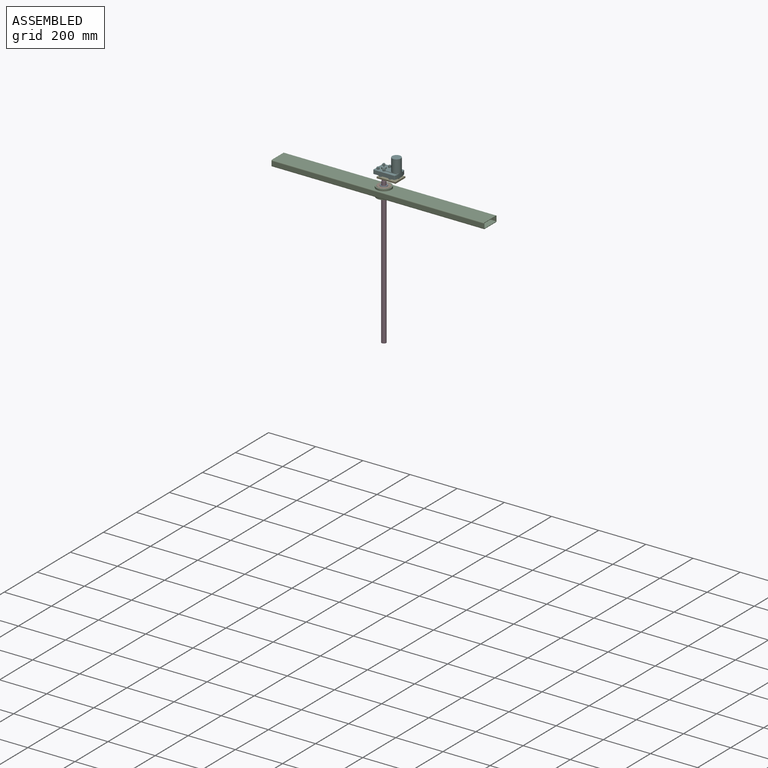
[diagram: assembled view]
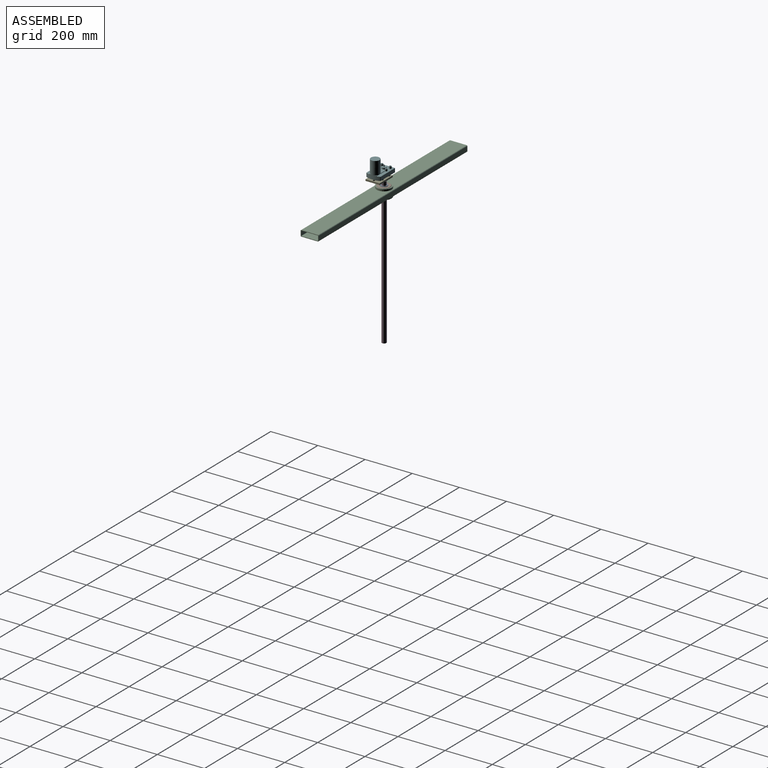
[diagram: assembled view, second angle]
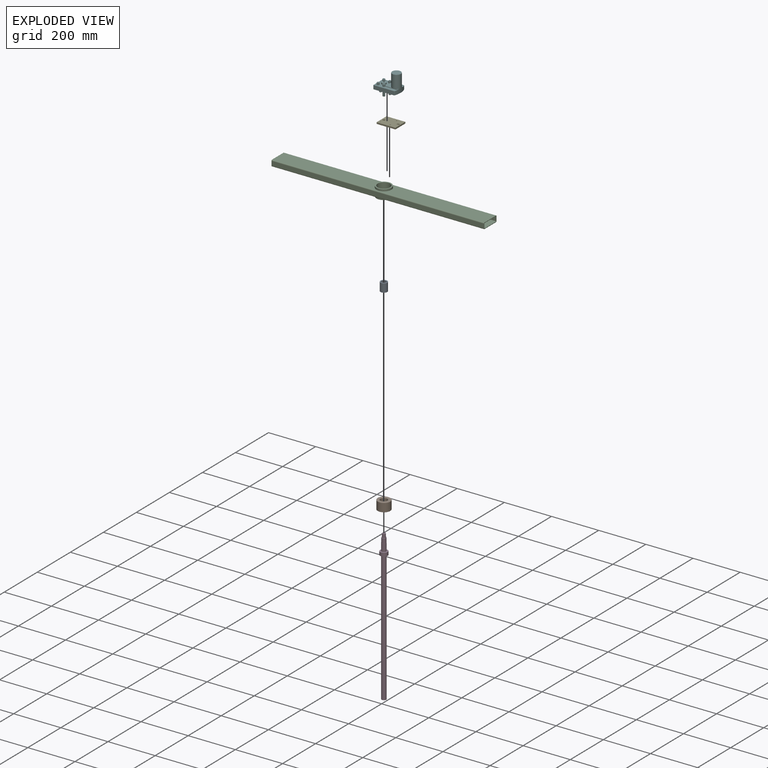
[diagram: exploded view]
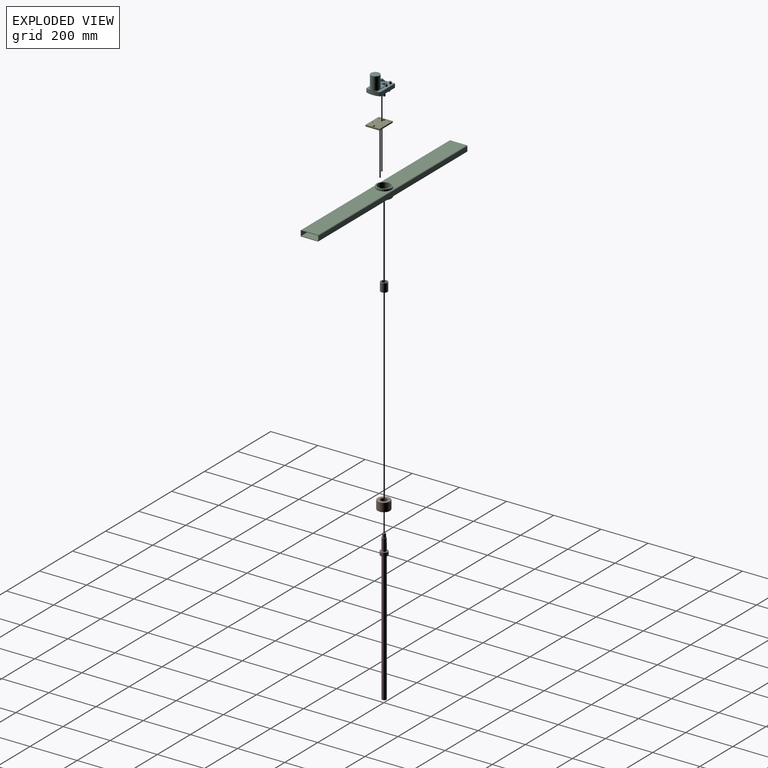
[diagram: exploded view, second angle]
ASSEMBLY  parts=6 mates=5
PART A: 8 faces, bbox 31.3x31.3x36.5 mm
  f0: cylinder r=9.53mm len=35.5mm, axis (0,0,-1), area 2124.6mm2, adj f4,f6
  f1: cylinder r=14.45mm len=35.5mm, axis (0,0,-1), area 3223.1mm2, adj f5,f7
  f2: plane 27.9x27.9mm, normal (0,0,1), area 295.6mm2, adj f6,f7
  f3: plane 27.9x27.9mm, normal (0,0,-1), area 295.6mm2, adj f4,f5
  f4: torus R=10.02mm, axis (0,0,1), area 47.9mm2, adj f0,f3
  f5: torus R=13.95mm, axis (0,0,1), area 70.4mm2, adj f1,f3
  f6: torus R=10.02mm, axis (0,0,1), area 47.9mm2, adj f0,f2
  f7: torus R=13.95mm, axis (0,0,1), area 70.4mm2, adj f1,f2
PART B: 8 faces, bbox 57.4x57.4x37 mm
  f0: cylinder r=14.45mm len=32.6mm, axis (0,0,-1), area 2959.8mm2, adj f4,f5
  f1: cylinder r=26.5mm len=53mm, axis (0,0,-1), area 5827.7mm2, adj f6,f7
  f2: plane 51x51mm, normal (0,0,1), area 1171.9mm2, adj f5,f7
  f3: plane 51x51mm, normal (0,0,-1), area 1171.9mm2, adj f4,f6
  f4: torus R=16.65mm, axis (0,0,1), area 331.1mm2, adj f0,f3
  f5: torus R=16.65mm, axis (0,0,1), area 331.1mm2, adj f0,f2
  f6: torus R=25.5mm, axis (0,0,1), area 258mm2, adj f1,f3
  f7: torus R=25.5mm, axis (0,0,1), area 258mm2, adj f1,f2
PART C: 26 faces, bbox 901x76.2x41.4 mm
  f0: plane 901x69.2mm, normal (0,0,-1), area 59182.3mm2, adj f1,f15,f16,f17,f24
  f1: cylinder r=3.5mm len=901mm, axis (-1,0,0), area 4953.5mm2, adj f0,f2,f16,f17
  f2: plane 901x18.4mm, normal (0,1,0), area 16578.4mm2, adj f1,f3,f16,f17
  f3: cylinder r=3.5mm len=901mm, axis (-1,0,0), area 4953.5mm2, adj f2,f4,f16,f17
  f4: plane 901x69.2mm, normal (0,0,1), area 59182.3mm2, adj f3,f5,f16,f17,f20
  f5: cylinder r=3.5mm len=901mm, axis (-1,0,0), area 4953.5mm2, adj f4,f6,f16,f17
  f6: plane 901x18.4mm, normal (0,-1,0), area 16578.4mm2, adj f5,f15,f16,f17
  f7: cylinder r=1.12mm len=901mm, axis (-1,0,0), area 1585.1mm2, adj f8,f14,f16,f17
  f8: plane 901x69.2mm, normal (0,0,-1), area 59182.3mm2, adj f7,f9,f16,f17,f18
  f9: cylinder r=1.12mm len=901mm, axis (-1,0,0), area 1585.1mm2, adj f8,f10,f16,f17
  f10: plane 901x18.4mm, normal (0,-1,0), area 16578.4mm2, adj f9,f11,f16,f17
  f11: cylinder r=1.12mm len=901mm, axis (-1,0,0), area 1585.1mm2, adj f10,f12,f16,f17
  f12: plane 901x69.2mm, normal (0,0,1), area 59182.3mm2, adj f11,f13,f16,f17,f18
  f13: cylinder r=1.12mm len=901mm, axis (-1,0,0), area 1585.1mm2, adj f12,f14,f16,f17
  f14: plane 901x18.4mm, normal (0,1,0), area 16578.4mm2, adj f7,f13,f16,f17
  f15: cylinder r=3.5mm len=901mm, axis (-1,0,0), area 4953.5mm2, adj f0,f6,f16,f17
  f16: plane 76.2x25.4mm, normal (1,0,0), area 451.5mm2, adj f0,f1,f2,f3,f4,f5,f6,f7
  f17: plane 76.2x25.4mm, normal (-1,0,0), area 451.5mm2, adj f0,f1,f2,f3,f4,f5,f6,f7
  f18: cylinder r=31.75mm len=63.5mm, axis (0,0,-1), area 4117.5mm2, adj f8,f12
  f19: cylinder r=26.5mm len=53mm, axis (0,0,-1), area 5561.2mm2, adj f21,f22
  f20: cylinder r=31.75mm len=63.5mm, axis (0,0,-1), area 1595.9mm2, adj f4,f21
  f21: plane 63.5x63.5mm, normal (0,0,1), area 960.7mm2, adj f19,f20
  f22: plane 53x53mm, normal (0,0,1), area 471.2mm2, adj f19,f23
  f23: cylinder r=23.5mm len=47mm, axis (0,0,1), area 1181.2mm2, adj f22,f25
  f24: cylinder r=31.75mm len=63.5mm, axis (0,0,1), area 1595.9mm2, adj f0,f25
  f25: plane 63.5x63.5mm, normal (0,0,-1), area 1432mm2, adj f23,f24
PART D: 11 faces, bbox 32x32x636 mm
  f0: cylinder r=9.53mm len=32mm, axis (0,0,-1), area 1915.1mm2, adj f1,f10
  f1: plane 32x32mm, normal (0,0,1), area 519.2mm2, adj f0,f2
  f2: cylinder r=16mm len=32mm, axis (0,0,-1), area 1508mm2, adj f1,f3
  f3: plane 32x32mm, normal (0,0,-1), area 519.2mm2, adj f2,f4
  f4: cylinder r=9.53mm len=553mm, axis (0,0,-1), area 33095.6mm2, adj f3,f5
  f5: plane 19.05x19.05mm, normal (0,0,-1), area 285mm2, adj f4
  f6: plane 14x14mm, normal (0,0,1), area 153.9mm2, adj f7
  f7: cylinder r=7mm len=16mm, axis (0,0,-1), area 703.7mm2, adj f6,f8
  f8: plane 18.4x18.4mm, normal (0,0,1), area 112mm2, adj f7,f9
  f9: cylinder r=9.2mm len=20mm, axis (0,0,-1), area 1156.1mm2, adj f8,f10
  f10: plane 19.05x19.05mm, normal (0,0,1), area 19.1mm2, adj f0,f9
PART E: 15 faces, bbox 80x60x6.4 mm
  f0: plane 80x60mm, normal (0,0,1), area 4604.7mm2, adj f1,f3,f4,f5,f6,f7,f8,f9
  f1: plane 80x6.35mm, normal (0,-1,0), area 508mm2, adj f0,f2,f4,f5
  f2: plane 80x60mm, normal (0,0,-1), area 4604.7mm2, adj f1,f3,f4,f5,f6,f7,f8,f9
  f3: plane 80x6.35mm, normal (0,1,0), area 508mm2, adj f0,f2,f4,f5
  f4: plane 60x6.35mm, normal (1,0,0), area 381mm2, adj f0,f1,f2,f3
  f5: plane 60x6.35mm, normal (-1,0,0), area 381mm2, adj f0,f1,f2,f3
  f6: cylinder r=5mm len=10mm, axis (0,0,-1), area 199.5mm2, adj f0,f2
  f7: cylinder r=2mm len=6.35mm, axis (0,0,-1), area 79.8mm2, adj f0,f2
  f8: cylinder r=2mm len=6.35mm, axis (0,0,-1), area 79.8mm2, adj f0,f2
  f9: cylinder r=2mm len=6.35mm, axis (0,0,-1), area 79.8mm2, adj f0,f2
  f10: cylinder r=2mm len=6.35mm, axis (0,0,-1), area 79.8mm2, adj f0,f2
  f11: cylinder r=3.5mm len=7mm, axis (0,0,-1), area 69.8mm2, adj f0,f2,f12,f13
  f12: plane 6.35x4mm, normal (0,1,0), area 25.4mm2, adj f0,f2,f11,f14
  f13: plane 6.35x4mm, normal (0,-1,0), area 25.4mm2, adj f0,f2,f11,f14
  f14: cylinder r=3.5mm len=7mm, axis (0,0,-1), area 69.8mm2, adj f0,f2,f12,f13
PART F: 77 faces, bbox 60x96x104 mm
  f0: cylinder r=5mm len=10mm, axis (0,0,-1), area 204.2mm2, adj f2,f6,f13,f14,f75
  f1: cylinder r=2mm len=7mm, axis (0,0,-1), area 88mm2, adj f2,f76
  f2: plane 10x10mm, normal (0,0,1), area 66mm2, adj f0,f1
  f3: plane 4x4mm, normal (0,0,1), area 12.6mm2, adj f23
  f4: plane 4x4mm, normal (0,0,1), area 12.6mm2, adj f20
  f5: plane 4x4mm, normal (0,0,1), area 12.6mm2, adj f17
  f6: plane 63x40mm, normal (0,0,1), area 2258.7mm2, adj f0,f7,f8,f9,f10,f11,f12,f13
  f7: plane 30x2mm, normal (1,0,0), area 60mm2, adj f6,f18,f21,f75
  f8: plane 16x2mm, normal (1,0,0), area 32mm2, adj f6,f9,f18,f75
  f9: cylinder r=2mm len=2mm, axis (0,0,-1), area 6.3mm2, adj f6,f8,f10,f75
  f10: plane 36x2mm, normal (0,-1,0), area 72mm2, adj f6,f9,f11,f75
  f11: cylinder r=2mm len=2mm, axis (0,0,-1), area 6.3mm2, adj f6,f10,f12,f75
  f12: plane 16x2mm, normal (-1,0,0), area 32mm2, adj f6,f11,f24,f75
  f13: plane 30x2mm, normal (-1,0,0), area 60mm2, adj f0,f6,f24,f75
  f14: plane 5.5x2mm, normal (0,1,0), area 11mm2, adj f0,f6,f28,f75
  f15: plane 5.5x2mm, normal (0,1,0), area 11mm2, adj f6,f21,f28,f75
  f16: plane 10x10mm, normal (0,0,1), area 66mm2, adj f17,f18
  f17: cylinder r=2mm len=7mm, axis (0,0,-1), area 88mm2, adj f5,f16
  f18: cylinder r=5mm len=10mm, axis (0,0,-1), area 188.5mm2, adj f6,f7,f8,f16,f75
  f19: plane 10x10mm, normal (0,0,1), area 66mm2, adj f20,f21
  f20: cylinder r=2mm len=7mm, axis (0,0,-1), area 88mm2, adj f4,f19
  f21: cylinder r=5mm len=10mm, axis (0,0,-1), area 204.2mm2, adj f6,f7,f15,f19,f75
  f22: plane 10x10mm, normal (0,0,1), area 66mm2, adj f23,f24
  f23: cylinder r=2mm len=7mm, axis (0,0,-1), area 88mm2, adj f3,f22
  f24: cylinder r=5mm len=10mm, axis (0,0,-1), area 188.5mm2, adj f6,f12,f13,f22,f75
  f25: plane 9.5x9.5mm, normal (0,0,1), area 70.9mm2, adj f26
  f26: cylinder r=4.75mm len=24mm, axis (0,0,-1), area 716.3mm2, adj f25,f27
  f27: plane 19x19mm, normal (0,0,1), area 212.6mm2, adj f26,f28
  f28: cylinder r=9.5mm len=19mm, axis (0,0,-1), area 358.1mm2, adj f6,f14,f15,f27,f75
  f29: plane 18.57x2.5mm, normal (0,0,1), area 31.4mm2, adj f31,f59
  f30: plane 37x37mm, normal (0,0,-1), area 1075.2mm2, adj f31
  f31: cylinder r=18.5mm len=55mm, axis (0,0,1), area 6393.1mm2, adj f29,f30,f32,f33,f56,f73,f74
  f32: plane 13.61x1.3mm, normal (0,0,1), area 9.2mm2, adj f31,f71
  f33: plane 18.57x2.5mm, normal (0,0,1), area 31.4mm2, adj f31,f62
  f34: plane 3.2x3.2mm, normal (0,0,-1), area 8mm2, adj f35
  f35: cylinder r=1.6mm len=8.1mm, axis (0,0,1), area 81.4mm2, adj f34,f36
  f36: plane 9.5x9.5mm, normal (0,0,-1), area 62.8mm2, adj f35,f39
  f37: plane 19x19mm, normal (0,0,-1), area 212.6mm2, adj f38,f39
  f38: cylinder r=9.5mm len=19mm, axis (0,0,1), area 358.1mm2, adj f37,f64
  f39: cylinder r=4.75mm len=9.5mm, axis (0,0,1), area 3mm2, adj f36,f37
  f40: plane 4x4mm, normal (0,0,-1), area 12.6mm2, adj f42
  f41: plane 10x10mm, normal (0,0,-1), area 66mm2, adj f42,f43
  f42: cylinder r=2mm len=8.5mm, axis (0,0,1), area 106.8mm2, adj f40,f41
  f43: cylinder r=5mm len=10mm, axis (0,0,1), area 267mm2, adj f41,f64
  f44: plane 4x4mm, normal (0,0,-1), area 12.6mm2, adj f46
  f45: plane 10x10mm, normal (0,0,-1), area 66mm2, adj f46,f47
  f46: cylinder r=2mm len=8.5mm, axis (0,0,1), area 106.8mm2, adj f44,f45
  f47: cylinder r=5mm len=10mm, axis (0,0,1), area 267mm2, adj f45,f64
  f48: plane 4x4mm, normal (0,0,-1), area 12.6mm2, adj f51
  f49: plane 10x10mm, normal (0,0,-1), area 66mm2, adj f50,f51
  f50: cylinder r=5mm len=10mm, axis (0,0,1), area 267mm2, adj f49,f64
  f51: cylinder r=2mm len=8.5mm, axis (0,0,1), area 106.8mm2, adj f48,f49
  f52: plane 4x4mm, normal (0,0,-1), area 12.6mm2, adj f55
  f53: plane 10x10mm, normal (0,0,-1), area 66mm2, adj f54,f55
  f54: cylinder r=5mm len=10mm, axis (0,0,1), area 267mm2, adj f53,f64
  f55: cylinder r=2mm len=8.5mm, axis (0,0,1), area 106.8mm2, adj f52,f53
  f56: plane 9.19x7.92mm, normal (0,0,-1), area 22.1mm2, adj f31,f59,f60,f71
  f57: plane 28x2mm, normal (0,1,0), area 56mm2, adj f58,f63,f64,f74
  f58: cylinder r=2mm len=2mm, axis (0,0,1), area 6.3mm2, adj f57,f59,f64,f74
  f59: plane 48.2x2mm, normal (-1,0,0), area 96.4mm2, adj f29,f56,f58,f60,f64,f74
  f60: cylinder r=2mm len=2mm, axis (0,0,1), area 5.5mm2, adj f56,f59,f64,f71
  f61: cylinder r=2mm len=2mm, axis (0,0,1), area 5.5mm2, adj f62,f64,f71,f73
  f62: plane 48.2x2mm, normal (1,0,0), area 96.4mm2, adj f33,f61,f63,f64,f73,f74
  f63: cylinder r=2mm len=2mm, axis (0,0,1), area 6.3mm2, adj f57,f62,f64,f74
  f64: plane 93.67x60mm, normal (0,0,-1), area 3291.6mm2, adj f38,f43,f47,f50,f54,f57,f58,f59
  f65: plane 86.65x16mm, normal (-1,0,0), area 1386.5mm2, adj f64,f66,f72,f75
  f66: cylinder r=1mm len=16mm, axis (0,0,1), area 25.1mm2, adj f64,f65,f67,f75
  f67: plane 58x16mm, normal (0,1,0), area 928mm2, adj f64,f66,f68,f75
  f68: cylinder r=1mm len=16mm, axis (0,0,1), area 25.1mm2, adj f64,f67,f69,f75
  f69: plane 86.65x16mm, normal (1,0,0), area 1386.5mm2, adj f64,f68,f70,f75
  f70: cylinder r=2mm len=16mm, axis (0,0,1), area 38.2mm2, adj f64,f69,f71,f75
  f71: cylinder r=78mm len=57.47mm, axis (0,0,1), area 999.6mm2, adj f32,f56,f60,f61,f64,f70,f72,f73
  f72: cylinder r=2mm len=16mm, axis (0,0,1), area 38.2mm2, adj f64,f65,f71,f75
  f73: plane 9.19x7.92mm, normal (0,0,-1), area 22.1mm2, adj f31,f61,f62,f71
  f74: plane 32x26.71mm, normal (0,0,-1), area 644.1mm2, adj f31,f57,f58,f59,f62,f63
  f75: plane 95x60mm, normal (0,0,1), area 2724.4mm2, adj f0,f7,f8,f9,f10,f11,f12,f13
  f76: plane 4x4mm, normal (0,0,1), area 12.6mm2, adj f1
PLACE A t=(5.9,5.52,71.63)mm
PLACE B t=(5.9,5.52,69.93)mm
PLACE C t=(5.9,5.52,72.13)mm
PLACE D t=(5.9,5.52,104.13)mm
PLACE E rot(axis=(0,0,1),180deg) t=(5.9,5.52,46.38)mm
PLACE F rot(axis=(0.71,-0.71,0),180deg) t=(29.4,5.52,155.13)mm
MATE revolute D.f0 <-> A.f0  axis (0,0,1) through (5.9,5.52,72.13)mm
MATE fastened F.f26 <-> D.f0  axis (0,0,-1) through (5.9,5.52,124.13)mm
MATE fastened F.f26 <-> E.f6  axis (0,0,-1) through (5.9,5.52,148.13)mm
MATE fastened C.f23 <-> B.f0  axis (0,0,1) through (5.9,5.52,72.13)mm
MATE fastened A.f0 <-> B.f0  axis (0,0,1) through (5.9,5.52,72.13)mm
